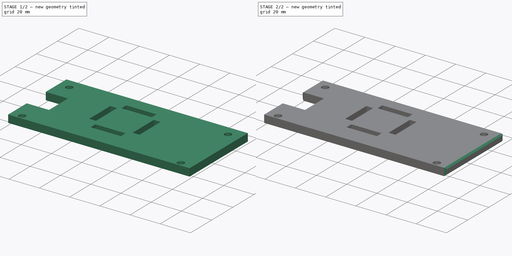
[diagram: build sequence overview — one tinted view per stage of 2, left to right]
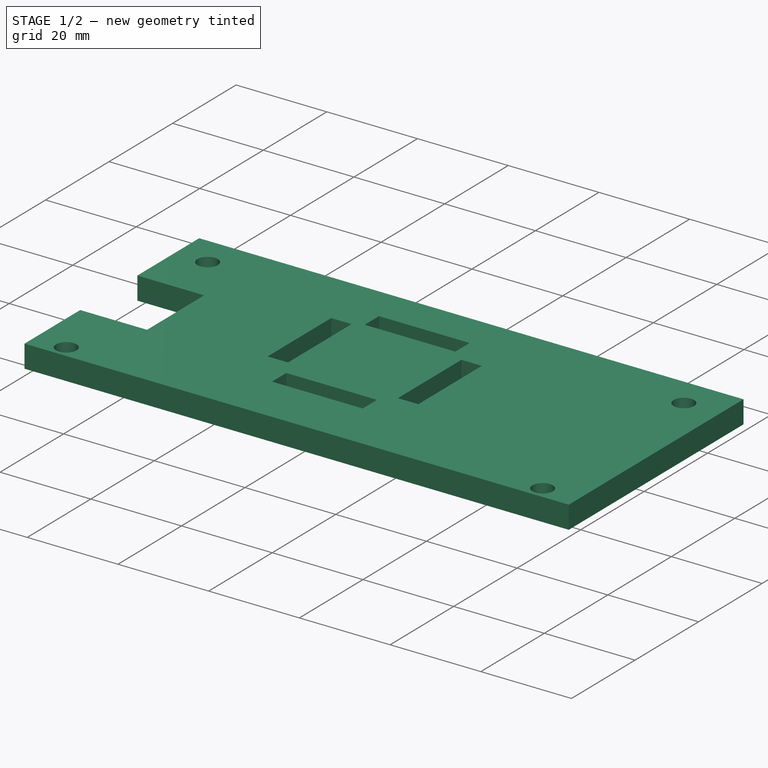
[diagram: stage 1 of 2 — iso view after this stage's code; geometry added in this stage tinted green]
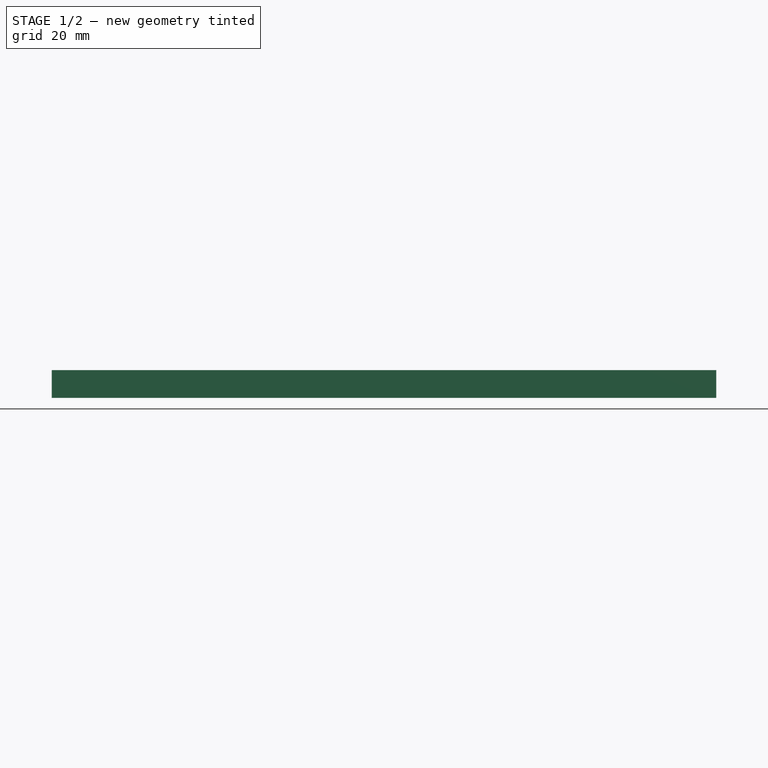
[diagram: stage 1 of 2 — front view after this stage's code; geometry added in this stage tinted green]
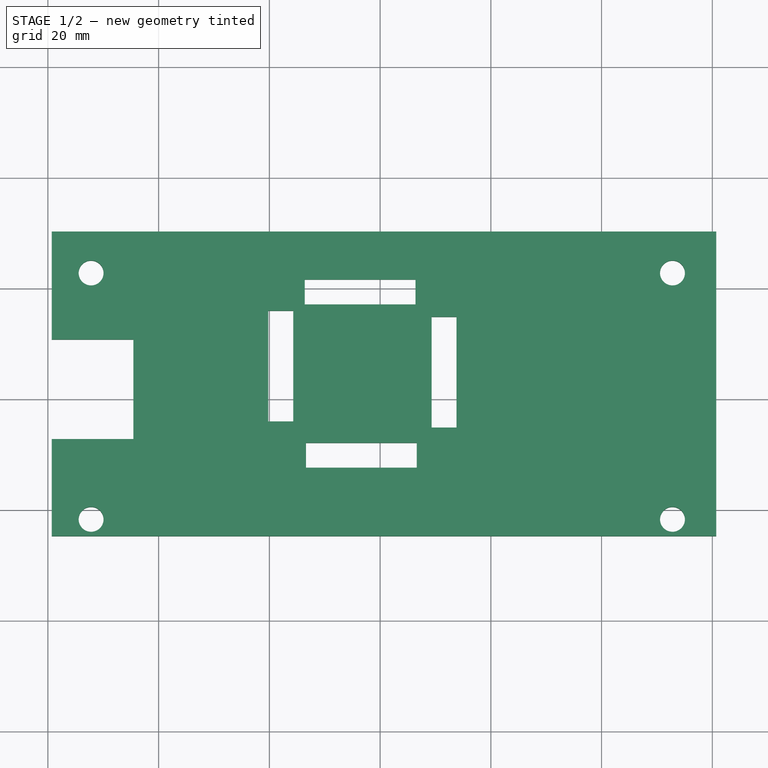
[diagram: stage 1 of 2 — top view after this stage's code; geometry added in this stage tinted green]
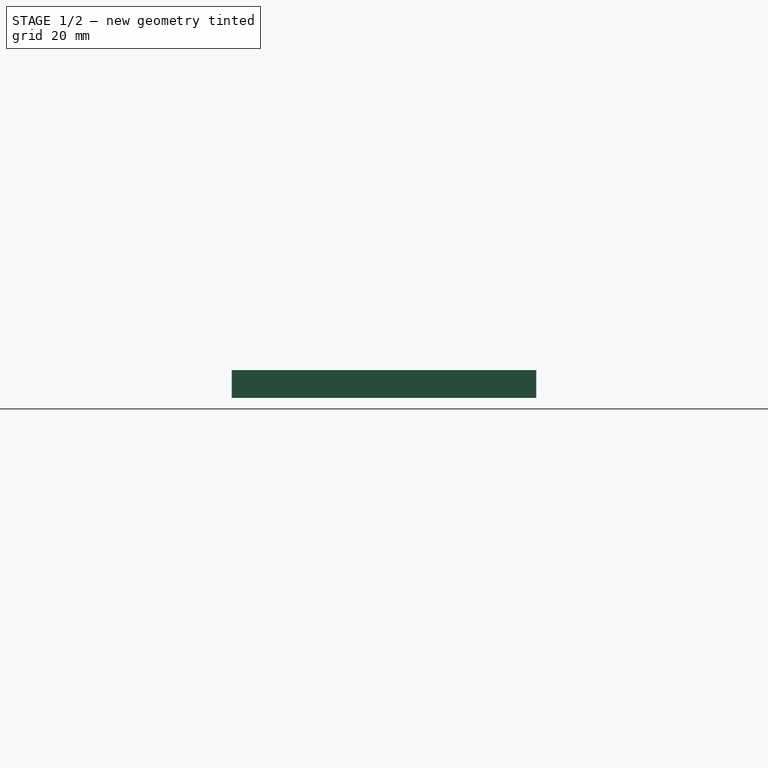
[diagram: stage 1 of 2 — right view after this stage's code; geometry added in this stage tinted green]
FCSTD DOCUMENT  (FreeCAD 1.0R39319 (Git))
Label: pcbadaptorv2
License: All rights reserved
LicenseURL: https://en.wikipedia.org/wiki/All_rights_reserved
objects: Sketcher::SketchObject×3, PartDesign::Chamfer×2, PartDesign::Body×2, PartDesign::Pad×1, PartDesign::Pocket×1
note: 20 computed .brp shape members not serialized (recipe doc carries the construction recipe); baked Part::Feature solids carry a one-line shape summary decoded from their .brp

FEATURE [Sketcher::SketchObject] Sketch
  ArcFitTolerance = 1e-06
  AttachmentSupport = -> [XY_Plane]
  FullyConstrained = false
  MakeInternals = false
  MapMode = 5
  sketch-geometry (4):
    g0: LineSegment StartX=-59.2972 StartY=30.2664 StartZ=0 EndX=-59.2972 EndY=-24.7336 EndZ=0
    g1: LineSegment StartX=-59.2972 StartY=-24.7336 StartZ=0 EndX=60.7028 EndY=-24.7336 EndZ=0
    g2: LineSegment StartX=60.7028 StartY=-24.7336 StartZ=0 EndX=60.7028 EndY=30.2664 EndZ=0
    g3: LineSegment StartX=60.7028 StartY=30.2664 StartZ=0 EndX=-59.2972 EndY=30.2664 EndZ=0
  constraints (10):
    c: Coincident(g0,g1)
    c: Coincident(g1,g2)
    c: Coincident(g2,g3)
    c: Coincident(g3,g0)
    c: Vertical(g0)
    c: Vertical(g2)
    c: Horizontal(g1)
    c: Horizontal(g3)
    c: Distance(g2,g0) = 120
    c: Distance(g1,g3) = 55
FEATURE [PartDesign::Pad] Pad
  Direction = (0,0,1)
  Length = 5
  Length2 = 10
  Profile = -> Sketch
  ReferenceAxis = -> Sketch [N_Axis]
  Refine = true
  Suppressed = false
  Type = 0
FEATURE [Sketcher::SketchObject] Sketch001
  ArcFitTolerance = 1e-06
  AttachmentSupport = -> [Pad]
  FullyConstrained = false
  MakeInternals = false
  MapMode = 5
  Placement = pos=(0,0,5) rot=(0,0,1;0rad)
  sketch-geometry (28):
    g0: GeomPoint X=-52.1968 Y=22.7847 Z=0
    g1: GeomPoint X=-52.1968 Y=-21.7153 Z=0
    g2: GeomPoint X=52.8032 Y=-21.7153 Z=0
    g3: GeomPoint X=52.8032 Y=22.7847 Z=0
    g4: LineSegment StartX=-59.5568 StartY=10.7847 StartZ=0 EndX=-59.5568 EndY=-7.2011 EndZ=0
    g5: LineSegment StartX=-59.5568 StartY=-7.2011 StartZ=0 EndX=-44.5568 EndY=-7.2011 EndZ=0
    g6: LineSegment StartX=-44.5568 StartY=-7.2011 StartZ=0 EndX=-44.5568 EndY=10.7847 EndZ=0
    g7: LineSegment StartX=-44.5568 StartY=10.7847 StartZ=0 EndX=-59.5568 EndY=10.7847 EndZ=0
    g8: Circle CenterX=-52.1968 CenterY=22.7847 CenterZ=0 NormalX=0 NormalY=0 NormalZ=1 AngleXU=0 Radius=2.25
    g9: Circle CenterX=-52.1968 CenterY=-21.7153 CenterZ=0 NormalX=0 NormalY=0 NormalZ=1 AngleXU=0 Radius=2.25
    g10: Circle CenterX=52.8032 CenterY=22.7847 CenterZ=0 NormalX=0 NormalY=0 NormalZ=1 AngleXU=0 Radius=2.25
    g11: Circle CenterX=52.8032 CenterY=-21.7153 CenterZ=0 NormalX=0 NormalY=0 NormalZ=1 AngleXU=0 Radius=2.25
    g12: LineSegment StartX=-13.6008 StartY=21.6088 StartZ=0 EndX=-13.6008 EndY=17.1088 EndZ=0
    g13: LineSegment StartX=-13.6008 StartY=17.1088 StartZ=0 EndX=6.39919 EndY=17.1088 EndZ=0
    g14: LineSegment StartX=6.39919 StartY=17.1088 StartZ=0 EndX=6.39919 EndY=21.6088 EndZ=0
    g15: LineSegment StartX=6.39919 StartY=21.6088 StartZ=0 EndX=-13.6008 EndY=21.6088 EndZ=0
    g16: LineSegment StartX=-13.3768 StartY=-7.89124 StartZ=0 EndX=-13.3768 EndY=-12.3912 EndZ=0
    g17: LineSegment StartX=-13.3768 StartY=-12.3912 StartZ=0 EndX=6.62317 EndY=-12.3912 EndZ=0
    g18: LineSegment StartX=6.62317 StartY=-12.3912 StartZ=0 EndX=6.62317 EndY=-7.89124 EndZ=0
    g19: LineSegment StartX=6.62317 StartY=-7.89124 StartZ=0 EndX=-13.3768 EndY=-7.89124 EndZ=0
    g20: LineSegment StartX=-20.1968 StartY=15.9747 StartZ=0 EndX=-20.1968 EndY=-4.02532 EndZ=0
    g21: LineSegment StartX=-20.1968 StartY=-4.02532 StartZ=0 EndX=-15.6968 EndY=-4.02532 EndZ=0
    g22: LineSegment StartX=-15.6968 StartY=-4.02532 StartZ=0 EndX=-15.6968 EndY=15.9747 EndZ=0
    g23: LineSegment StartX=-15.6968 StartY=15.9747 StartZ=0 EndX=-20.1968 EndY=15.9747 EndZ=0
    g24: LineSegment StartX=9.30317 StartY=14.8756 StartZ=0 EndX=9.30317 EndY=-5.12441 EndZ=0
    g25: LineSegment StartX=9.30317 StartY=-5.12441 StartZ=0 EndX=13.8032 EndY=-5.12441 EndZ=0
    g26: LineSegment StartX=13.8032 StartY=-5.12441 StartZ=0 EndX=13.8032 EndY=14.8756 EndZ=0
    g27: LineSegment StartX=13.8032 StartY=14.8756 StartZ=0 EndX=9.30317 EndY=14.8756 EndZ=0
  constraints (70):
    c: DistanceX(g0,g3) = 105
    c: DistanceX(g1,g2) = 105
    c: Horizontal(g0,g3)
    c: Horizontal(g1,g2)
    c: Vertical(g0,g1)
    c: DistanceY(g1,g0) = 44.5
    c: Coincident(g4,g5)
    c: Coincident(g5,g6)
    c: Coincident(g6,g7)
    c: Coincident(g7,g4)
    c: Vertical(g4)
    c: Vertical(g6)
    c: Horizontal(g5)
    c: Horizontal(g7)
    c: Distance(g0,g7) = 12
    c: Distance(g6,g4) = 15
    c: Distance(g0,g4) = 7.36
    c: Diameter(g8) = 4.5
    c: Coincident(g8,g0)
    c: Diameter(g9) = 4.5
    c: Coincident(g9,g1)
    c: Diameter(g10) = 4.5
    c: Coincident(g10,g3)
    c: Diameter(g11) = 4.5
    c: Coincident(g11,g2)
    c: Coincident(g12,g13)
    c: Coincident(g13,g14)
    c: Coincident(g14,g15)
    c: Coincident(g15,g12)
    c: Vertical(g12)
    c: Vertical(g14)
    c: Horizontal(g13)
    c: Horizontal(g15)
    c: DistanceY(g12,g12) = 4.5
    c: DistanceX(g15,g15) = 20
    c: Coincident(g16,g17)
    c: Coincident(g17,g18)
    c: Coincident(g18,g19)
    c: Coincident(g19,g16)
    c: Vertical(g16)
    c: Vertical(g18)
    c: Horizontal(g17)
    c: Horizontal(g19)
    c: Distance(g16,g18) = 20
    c: Distance(g17,g19) = 4.5
    c: Distance(g19,g13) = 25
    c: Coincident(g20,g21)
    c: Coincident(g21,g22)
    c: Coincident(g22,g23)
    c: Coincident(g23,g20)
    c: Vertical(g20)
    c: Vertical(g22)
    c: Horizontal(g21)
    c: Horizontal(g23)
    c: Distance(g20,g22) = 4.5
    c: Distance(g21,g23) = 20
    c: Coincident(g24,g25)
    c: Coincident(g25,g26)
    c: Coincident(g26,g27)
    c: Coincident(g27,g24)
    c: Vertical(g24)
    c: Vertical(g26)
    c: Horizontal(g25)
    c: Horizontal(g27)
    c: Distance(g24,g26) = 4.5
    c: Distance(g25,g27) = 20
    c: Distance(g24,g22) = 25
    c: Distance(g20,g6) = 24.36
    c: Distance(g23,g7) = 5.19
    c: Distance(g16,g22) = 2.32
FEATURE [PartDesign::Pocket] Pocket
  BaseFeature = -> Pad
  Direction = (0,0,-1)
  Length = 5
  Length2 = 5
  Profile = -> Sketch001
  ReferenceAxis = -> Sketch001 [N_Axis]
  Refine = true
  Suppressed = false
  Type = 0
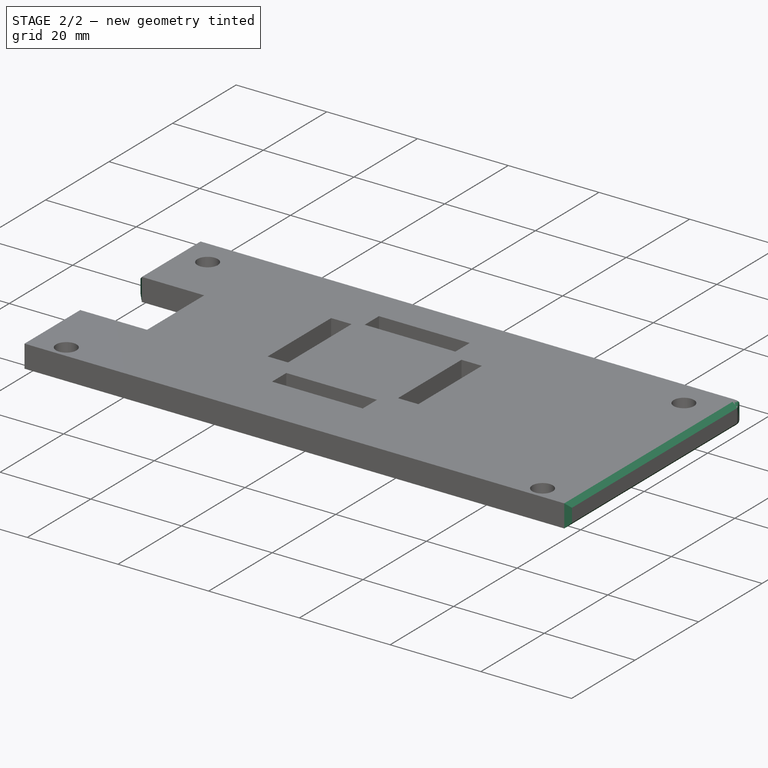
[diagram: stage 2 of 2 — iso view after this stage's code; geometry added in this stage tinted green]
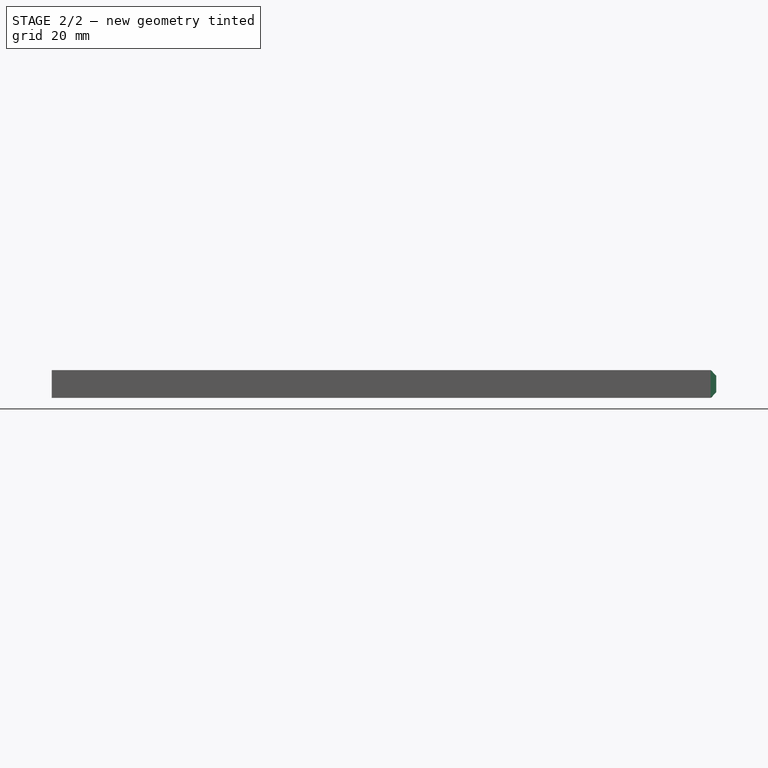
[diagram: stage 2 of 2 — front view after this stage's code; geometry added in this stage tinted green]
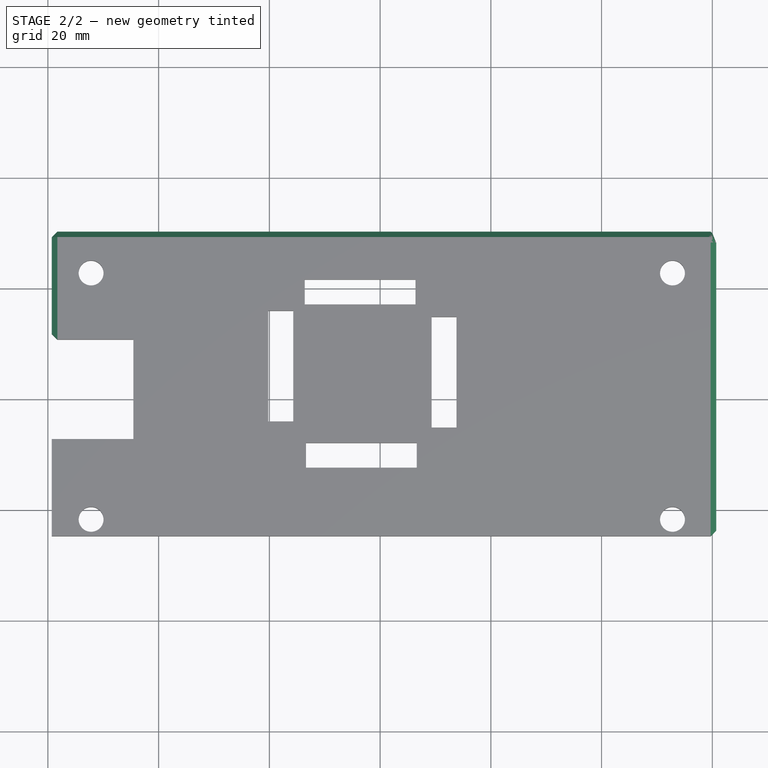
[diagram: stage 2 of 2 — top view after this stage's code; geometry added in this stage tinted green]
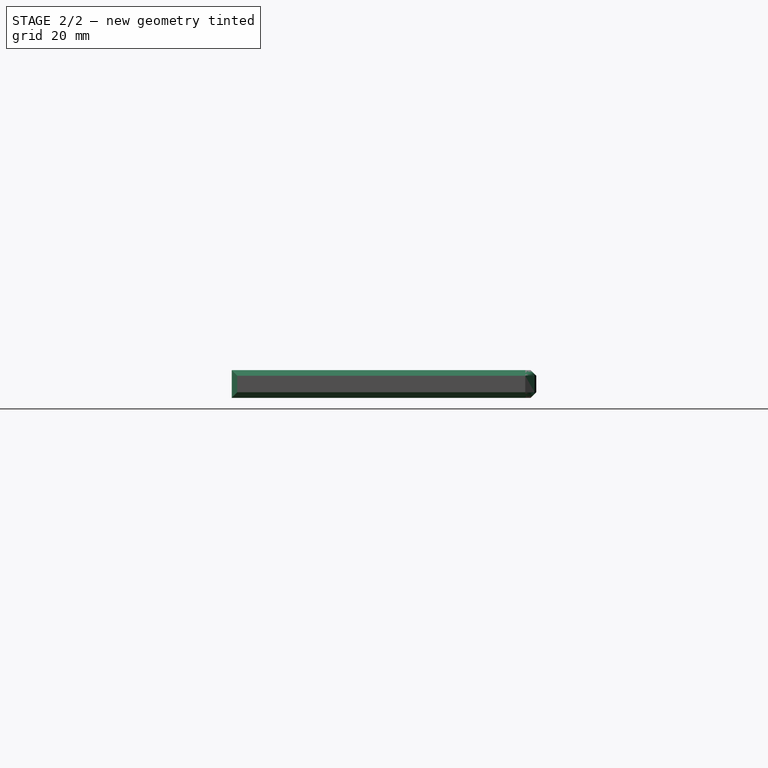
[diagram: stage 2 of 2 — right view after this stage's code; geometry added in this stage tinted green]
FEATURE [PartDesign::Chamfer] Chamfer
  Angle = 45
  Base = -> Pocket [Face5,Face1]
  BaseFeature = -> Pocket
  ChamferType = 0
  FlipDirection = false
  Refine = true
  Size = 1
  Size2 = 1
  SupportTransform = false
  Suppressed = false
  UseAllEdges = false
FEATURE [PartDesign::Body] Body001
  AllowCompound = false
  Origin = -> Origin001
FEATURE [PartDesign::Chamfer] Chamfer001
  Angle = 45
  Base = -> Chamfer [Face15]
  BaseFeature = -> Chamfer
  ChamferType = 0
  FlipDirection = false
  Refine = true
  Size = 1
  Size2 = 1
  SupportTransform = false
  Suppressed = false
  UseAllEdges = false
FEATURE [Sketcher::SketchObject] Sketch002
  ArcFitTolerance = 1e-06
  AttachmentSupport = -> [XY_Plane]
  FullyConstrained = false
  MakeInternals = false
  MapMode = 5
  sketch-geometry (2):
    g0: LineSegment StartX=29.2507 StartY=-1.13368 StartZ=0 EndX=24.7979 EndY=-11.404 EndZ=0
    g1: LineSegment StartX=24.7979 StartY=-11.404 StartZ=0 EndX=20.8932 EndY=-12.5337 EndZ=0
  constraints (1):
    c: Coincident(g0,g1)
FEATURE [PartDesign::Body] Body
  AllowCompound = false
  Group = -> [Sketch,Pad,Sketch001,Pocket,Chamfer,Chamfer001,Sketch002]
  Origin = -> Origin
  Tip = -> Chamfer001
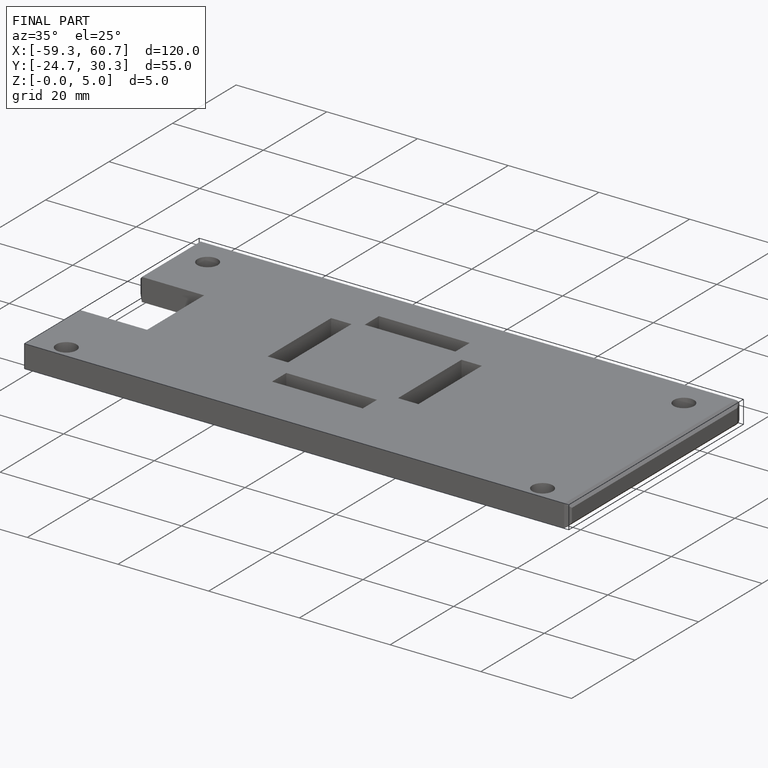
[diagram: finished part — iso view with bounding-box wireframe]
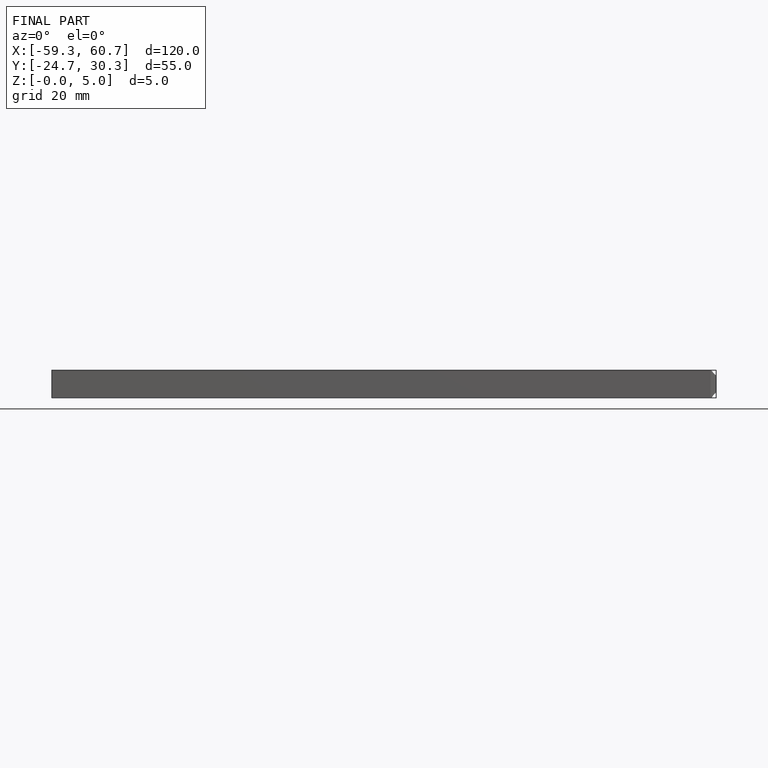
[diagram: finished part — front view with bounding-box wireframe]
